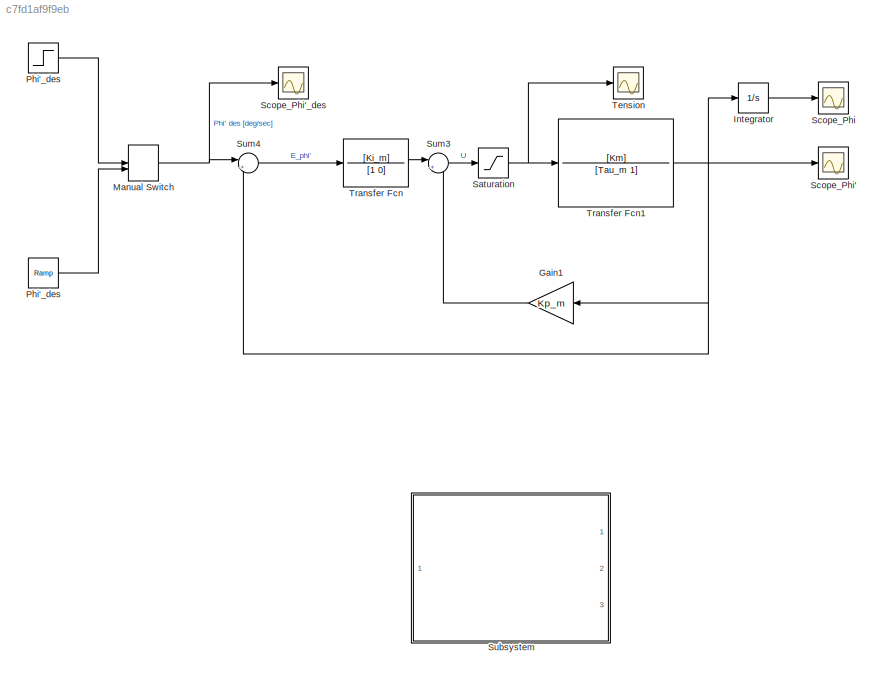
MODEL slx_c7fd1af9f9eb
KIND model
CONFIG AbsTol = auto
CONFIG EnableMultiTasking = off
CONFIG FixedStep = auto
CONFIG MaxStep = auto
CONFIG MinStep = auto
CONFIG RelTol = 1e-3
CONFIG SampleTimeConstraint = Unconstrained
CONFIG Solver = ode45
CONFIG SolverName = ode45
CONFIG StartTime = 0.0
CONFIG StopTime = simTime
BLOCK [Gain] Gain1
  Gain = Kp_m
  OutDataTypeStr = Inherit: Inherit via internal rule
  ParamDataTypeStr = Inherit: Inherit via internal rule
  SaturateOnIntegerOverflow = off
BLOCK [Integrator] Integrator
  Ports = [1, 1]
BLOCK [ManualSwitch] Manual Switch
  CurrentSetting = 0
BLOCK [Reference] Phi'_des  REF=simulink/Sources/Ramp
  Ports = [0, 1]
  SourceBlock = simulink/Sources/Ramp
  SourceProductBaseCode = SL
  SourceProductName = Simulink
  SourceType = Ramp
BLOCK [Step] Phi'_des 
  After = targetSpeed
  SampleTime = 0
  Time = 0
BLOCK [Saturate] Saturation
  InputPortMap = u0
  LowerLimit = -6
  Ports = [1, 1]
  UpperLimit = 6
BLOCK [Scope] Scope_Phi
  Floating = off
  NumInputPorts = 1
  Ports = [1]
  ScopeSpecificationString = Simulink.scopes.TimeScopeBlockCfg('CurrentConfiguration', extmgr.ConfigurationSet(extmgr.Configuration('Core','General UI',true),extmgr.Configuration('Core','Source UI',true),extmgr.Configuration('Sources','WiredSimulink',true,'DataLoggingVariableName','Phi','DataLogging',true,'DataLoggingSaveFormat','Array'),extmgr.Configuration('Visuals','Time Domain',true,'SerializedDisplays',{struct('MinYLimRe...<+1439ch>
BLOCK [Scope] Scope_Phi'
  Floating = off
  NumInputPorts = 1
  Ports = [1]
  ScopeSpecificationString = Simulink.scopes.TimeScopeBlockCfg('CurrentConfiguration', extmgr.ConfigurationSet(extmgr.Configuration('Core','General UI',true),extmgr.Configuration('Core','Source UI',true),extmgr.Configuration('Sources','WiredSimulink',true,'DataLogging',true,'DataLoggingVariableName','Phi_dot','DataLoggingSaveFormat','Array','SampleTime','0.0001'),extmgr.Configuration('Visuals','Time Domain',true,'SerializedDi...<+1533ch>
BLOCK [Scope] Scope_Phi'_des
  Floating = off
  NumInputPorts = 1
  Ports = [1]
  ScopeSpecificationString = Simulink.scopes.TimeScopeBlockCfg('CurrentConfiguration', extmgr.ConfigurationSet(extmgr.Configuration('Core','General UI',true),extmgr.Configuration('Core','Source UI',true),extmgr.Configuration('Sources','WiredSimulink',true,'DataLoggingVariableName','Phi_dot_des','DataLogging',true,'DataLoggingSaveFormat','Array'),extmgr.Configuration('Visuals','Time Domain',true,'SerializedDisplays',{struct('M...<+1485ch>
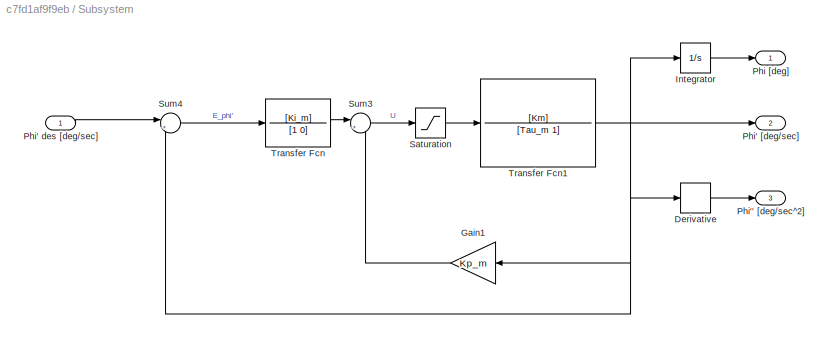
BLOCK [SubSystem] Subsystem
  MinAlgLoopOccurrences = on
  Ports = [1, 3]
  RequestExecContextInheritance = off
  TreatAsAtomicUnit = on
BLOCK [Derivative] Subsystem/Derivative
BLOCK [Gain] Subsystem/Gain1
  Gain = Kp_m
  OutDataTypeStr = Inherit: Inherit via internal rule
  ParamDataTypeStr = Inherit: Inherit via internal rule
  SaturateOnIntegerOverflow = off
BLOCK [Integrator] Subsystem/Integrator
  Ports = [1, 1]
BLOCK [Outport] Subsystem/Phi [deg]
  IconDisplay = Port number
BLOCK [Outport] Subsystem/Phi' [deg//sec]
  IconDisplay = Port number
  Port = 2
BLOCK [Inport] Subsystem/Phi' des [deg//sec]
  IconDisplay = Port number
BLOCK [Outport] Subsystem/Phi'' [deg//sec^2]
  IconDisplay = Port number
  Port = 3
BLOCK [Saturate] Subsystem/Saturation
  InputPortMap = u0
  LowerLimit = -6
  Ports = [1, 1]
  UpperLimit = 6
BLOCK [Sum] Subsystem/Sum3
  IconShape = round
  InputSameDT = off
  Inputs = |+-
  OutDataTypeStr = Inherit: Inherit via internal rule
  Ports = [2, 1]
  SaturateOnIntegerOverflow = off
BLOCK [Sum] Subsystem/Sum4
  IconShape = round
  InputSameDT = off
  Inputs = |+-
  OutDataTypeStr = Inherit: Inherit via internal rule
  Ports = [2, 1]
  SaturateOnIntegerOverflow = off
BLOCK [TransferFcn] Subsystem/Transfer Fcn
  Denominator = [1 0]
  Numerator = [Ki_m]
BLOCK [TransferFcn] Subsystem/Transfer Fcn1
  Denominator = [Tau_m 1]
  Numerator = [Km]
BLOCK [Sum] Sum3
  IconShape = round
  InputSameDT = off
  Inputs = |+-
  OutDataTypeStr = Inherit: Inherit via internal rule
  Ports = [2, 1]
  SaturateOnIntegerOverflow = off
BLOCK [Sum] Sum4
  IconShape = round
  InputSameDT = off
  Inputs = |+-
  OutDataTypeStr = Inherit: Inherit via internal rule
  Ports = [2, 1]
  SaturateOnIntegerOverflow = off
BLOCK [Scope] Tension
  Floating = off
  NumInputPorts = 1
  Ports = [1]
  ScopeSpecificationString = Simulink.scopes.TimeScopeBlockCfg('CurrentConfiguration', extmgr.ConfigurationSet(extmgr.Configuration('Core','General UI',true),extmgr.Configuration('Core','Source UI',true),extmgr.Configuration('Sources','WiredSimulink',true,'DataLoggingVariableName','U','DataLogging',true,'DataLoggingSaveFormat','Array'),extmgr.Configuration('Visuals','Time Domain',true,'SerializedDisplays',{struct('MinYLimReal...<+1393ch>
BLOCK [TransferFcn] Transfer Fcn
  Denominator = [1 0]
  Numerator = [Ki_m]
BLOCK [TransferFcn] Transfer Fcn1
  Denominator = [Tau_m 1]
  Numerator = [Km]
LINE Gain1:1 -> Sum3:2
LINE Integrator:1 -> Scope_Phi:1
NET Manual Switch:1 -> Scope_Phi'_des:1, Sum4:1
LINE Phi'_des :1 -> Manual Switch:1
LINE Phi'_des:1 -> Manual Switch:2
NET Saturation:1 -> Tension:1, Transfer Fcn1:1
LINE Subsystem/Derivative:1 -> Subsystem/Phi'' [deg//sec^2]:1
LINE Subsystem/Gain1:1 -> Subsystem/Sum3:2
LINE Subsystem/Integrator:1 -> Subsystem/Phi [deg]:1
LINE Subsystem/Phi' des [deg//sec]:1 -> Subsystem/Sum4:1
LINE Subsystem/Saturation:1 -> Subsystem/Transfer Fcn1:1
LINE Subsystem/Sum3:1 -> Subsystem/Saturation:1
LINE Subsystem/Sum4:1 -> Subsystem/Transfer Fcn:1
NET Subsystem/Transfer Fcn1:1 -> Subsystem/Derivative:1, Subsystem/Gain1:1, Subsystem/Integrator:1, Subsystem/Phi' [deg//sec]:1, Subsystem/Sum4:2
LINE Subsystem/Transfer Fcn:1 -> Subsystem/Sum3:1
LINE Sum3:1 -> Saturation:1
LINE Sum4:1 -> Transfer Fcn:1
NET Transfer Fcn1:1 -> Gain1:1, Integrator:1, Scope_Phi':1, Sum4:2
LINE Transfer Fcn:1 -> Sum3:1
note: NET lines group one-source signal fan-out (src -> all destinations, sorted); 1:1 wires keep LINE
